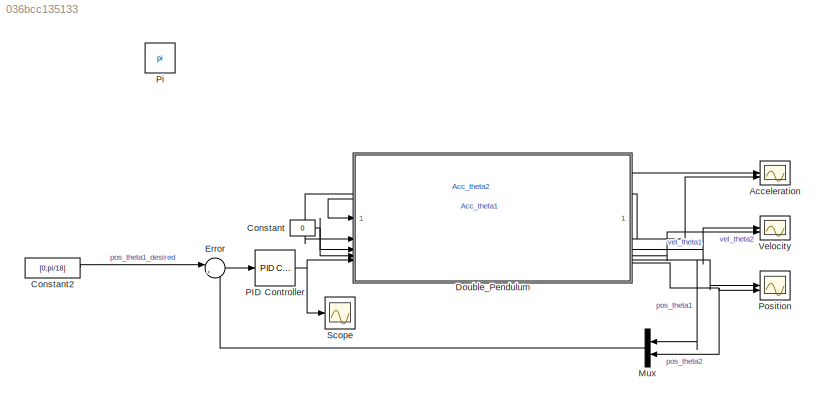
MODEL slx_036bcc135133
KIND model
CONFIG AbsTol = auto
CONFIG EnableMultiTasking = off
CONFIG FixedStep = auto
CONFIG MaxStep = auto
CONFIG MinStep = auto
CONFIG RelTol = 1e-3
CONFIG SampleTimeConstraint = Unconstrained
CONFIG SolverName = VariableStepAuto
CONFIG StartTime = 0.0
CONFIG StopTime = 5
BLOCK [Scope] Acceleration
  Floating = off
  NumInputPorts = 2
  ScopeSpecificationString = Simulink.scopes.TimeScopeBlockCfg('CurrentConfiguration', extmgr.ConfigurationSet(extmgr.Configuration('Core','General UI',true),extmgr.Configuration('Core','Source UI',true),extmgr.Configuration('Sources','WiredSimulink',true,'DataLoggingVariableName','ScopeData3'),extmgr.Configuration('Visuals','Time Domain',true,'SerializedDisplays',{struct('MinYLimReal','-14.72303','MaxYLimReal','12.15918','YL...<+1386ch>
BLOCK [Constant] Constant
  Value = 0
BLOCK [Constant] Constant2
  Value = [0;pi/18]
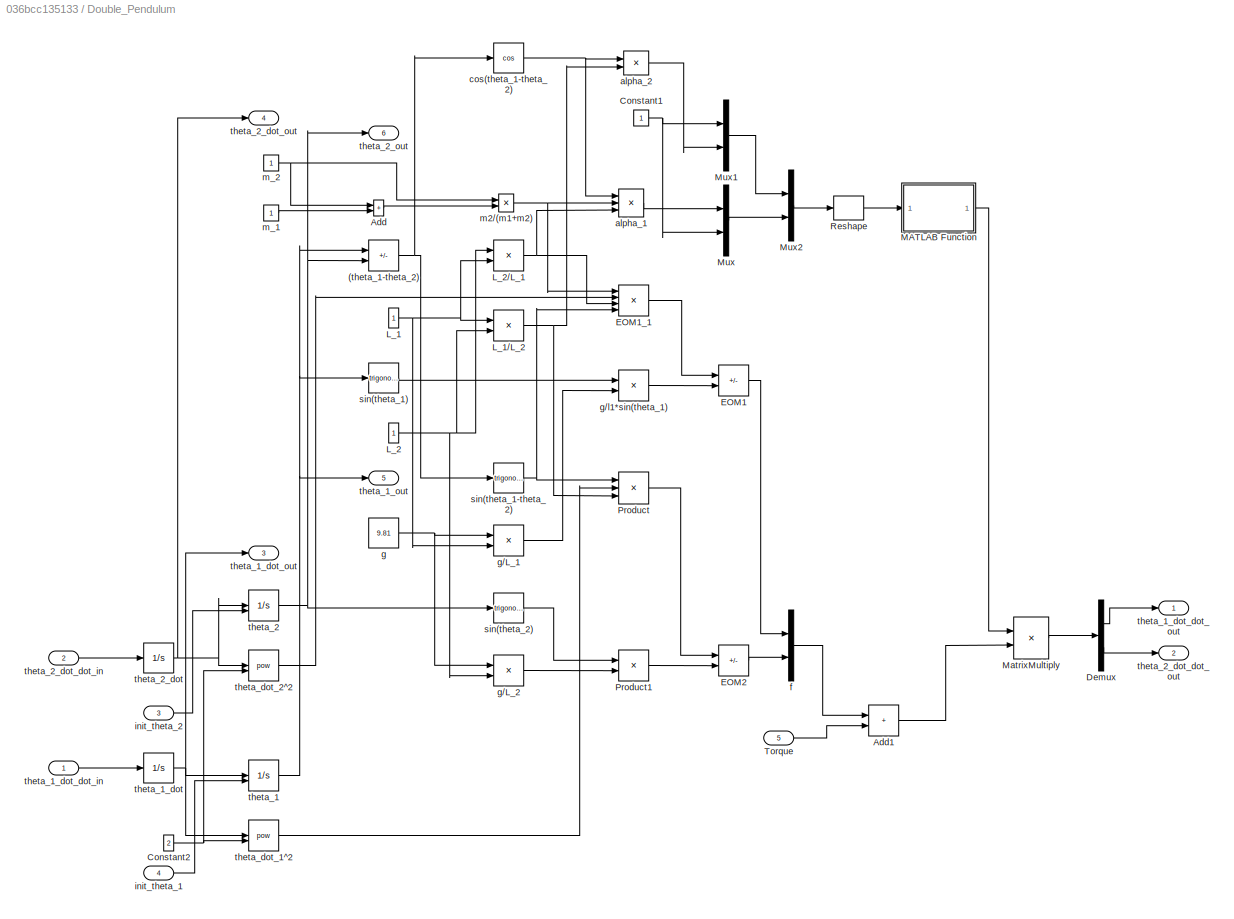
BLOCK [SubSystem] Double_Pendulum
BLOCK [Sum] Double_Pendulum/(theta_1-theta_2)
  IconShape = rectangular
  Inputs = +-
BLOCK [Sum] Double_Pendulum/Add
  IconShape = rectangular
BLOCK [Sum] Double_Pendulum/Add1
  IconShape = rectangular
BLOCK [Constant] Double_Pendulum/Constant1
BLOCK [Constant] Double_Pendulum/Constant2
  Value = 2
BLOCK [Demux] Double_Pendulum/Demux
  Outputs = 2
BLOCK [Sum] Double_Pendulum/EOM1
  IconShape = rectangular
  Inputs = --
BLOCK [Product] Double_Pendulum/EOM1_1
  Inputs = 4
BLOCK [Sum] Double_Pendulum/EOM2
  IconShape = rectangular
  Inputs = +-
BLOCK [Constant] Double_Pendulum/L_1
BLOCK [Product] Double_Pendulum/L_1//L_2
  Inputs = */
BLOCK [Constant] Double_Pendulum/L_2
BLOCK [Product] Double_Pendulum/L_2//L_1
  Inputs = */
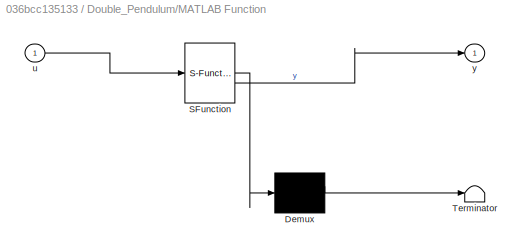
BLOCK [SubSystem] Double_Pendulum/MATLAB Function
  ErrorFcn = Stateflow.Translate.translate
  LibrarySourceBlock = simulink/User-Defined\nFunctions/MATLAB Function
  PermitHierarchicalResolution = ExplicitOnly
  SFBlockType = MATLAB Function
  TreatAsAtomicUnit = on
BLOCK [Demux] Double_Pendulum/MATLAB Function/ Demux 
  Outputs = 1
BLOCK [S-Function] Double_Pendulum/MATLAB Function/ SFunction 
  EnableBusSupport = on
  FunctionName = sf_sfun
  PortCounts = [1 2]
  SFcnIsStateOwnerBlock = off
  SFunctionDeploymentMode = off
  Tag = Stateflow S-Function 1
BLOCK [Terminator] Double_Pendulum/MATLAB Function/ Terminator 
BLOCK [Inport] Double_Pendulum/MATLAB Function/u
BLOCK [Outport] Double_Pendulum/MATLAB Function/y
BLOCK [Product] Double_Pendulum/MatrixMultiply
  Multiplication = Matrix(*)
BLOCK [Mux] Double_Pendulum/Mux
  DisplayOption = bar
  Inputs = 2
BLOCK [Mux] Double_Pendulum/Mux1
  DisplayOption = bar
  Inputs = 2
BLOCK [Mux] Double_Pendulum/Mux2
  DisplayOption = bar
  Inputs = 2
BLOCK [Product] Double_Pendulum/Product
  Inputs = 3
BLOCK [Product] Double_Pendulum/Product1
BLOCK [Reshape] Double_Pendulum/Reshape
  OutputDimensionality = Customize
  OutputDimensions = [2,2]
BLOCK [Inport] Double_Pendulum/Torque
  Port = 5
BLOCK [Product] Double_Pendulum/alpha_1
  Inputs = 3
BLOCK [Product] Double_Pendulum/alpha_2
BLOCK [Trigonometry] Double_Pendulum/cos(theta_1-theta_2)
  Operator = cos
BLOCK [Mux] Double_Pendulum/f
  DisplayOption = bar
  Inputs = 2
BLOCK [Constant] Double_Pendulum/g
  Value = 9.81
BLOCK [Product] Double_Pendulum/g//L_1
  Inputs = */
BLOCK [Product] Double_Pendulum/g//L_2
  Inputs = */
BLOCK [Product] Double_Pendulum/g//l1*sin(theta_1)
BLOCK [Inport] Double_Pendulum/init_theta_1
  Port = 4
BLOCK [Inport] Double_Pendulum/init_theta_2
  Port = 3
BLOCK [Product] Double_Pendulum/m2//(m1+m2)
  Inputs = */
BLOCK [Constant] Double_Pendulum/m_1
BLOCK [Constant] Double_Pendulum/m_2
BLOCK [Trigonometry] Double_Pendulum/sin(theta_1)
BLOCK [Trigonometry] Double_Pendulum/sin(theta_1-theta_2)
BLOCK [Trigonometry] Double_Pendulum/sin(theta_2)
BLOCK [Integrator] Double_Pendulum/theta_1
  InitialCondition = pi/4
  InitialConditionSource = external
BLOCK [Integrator] Double_Pendulum/theta_1_dot
BLOCK [Inport] Double_Pendulum/theta_1_dot_dot_in
BLOCK [Outport] Double_Pendulum/theta_1_dot_dot_out
BLOCK [Outport] Double_Pendulum/theta_1_dot_out
  Port = 3
BLOCK [Outport] Double_Pendulum/theta_1_out
  Port = 5
BLOCK [Integrator] Double_Pendulum/theta_2
  InitialCondition = pi/4
  InitialConditionSource = external
BLOCK [Integrator] Double_Pendulum/theta_2_dot
BLOCK [Inport] Double_Pendulum/theta_2_dot_dot_in
  Port = 2
BLOCK [Outport] Double_Pendulum/theta_2_dot_dot_out
  Port = 2
BLOCK [Outport] Double_Pendulum/theta_2_dot_out
  Port = 4
BLOCK [Outport] Double_Pendulum/theta_2_out
  Port = 6
BLOCK [Math] Double_Pendulum/theta_dot_1^2
  Operator = pow
BLOCK [Math] Double_Pendulum/theta_dot_2^2
  Operator = pow
BLOCK [Sum] Error
  Inputs = |+-
BLOCK [Mux] Mux
  DisplayOption = bar
  Inputs = 2
BLOCK [Reference] PID Controller  REF=slpidlib/PID Controller
  LibrarySourceBlock = simulink/Continuous/PID Controller
  SourceBlock = slpidlib/PID Controller
  SourceType = PID 1dof
BLOCK [Constant] Pi
  OutDataTypeStr = Inherit: Inherit via back propagation
  Value = pi
BLOCK [Scope] Position
  Floating = off
  NumInputPorts = 2
  ScopeSpecificationString = Simulink.scopes.TimeScopeBlockCfg('CurrentConfiguration', extmgr.ConfigurationSet(extmgr.Configuration('Core','General UI',true),extmgr.Configuration('Core','Source UI',true),extmgr.Configuration('Sources','WiredSimulink',true,'DataLoggingVariableName','ScopeData2'),extmgr.Configuration('Visuals','Time Domain',true,'SerializedDisplays',{struct('MinYLimReal','-0.11398','MaxYLimReal','0.26391','YLab...<+1456ch>
BLOCK [Scope] Scope
  Floating = off
  NumInputPorts = 1
  ScopeSpecificationString = Simulink.scopes.TimeScopeBlockCfg('CurrentConfiguration', extmgr.ConfigurationSet(extmgr.Configuration('Core','General UI',true),extmgr.Configuration('Core','Source UI',true),extmgr.Configuration('Sources','WiredSimulink',true,'DataLoggingVariableName','ScopeData1'),extmgr.Configuration('Visuals','Time Domain',true,'SerializedDisplays',{struct('MinYLimReal','-28.43898','MaxYLimReal','125.33293','Y...<+1404ch>
BLOCK [Scope] Velocity
  Floating = off
  NumInputPorts = 2
  ScopeSpecificationString = Simulink.scopes.TimeScopeBlockCfg('CurrentConfiguration', extmgr.ConfigurationSet(extmgr.Configuration('Core','General UI',true),extmgr.Configuration('Core','Source UI',true),extmgr.Configuration('Sources','WiredSimulink',true,'DataLoggingVariableName','ScopeData1'),extmgr.Configuration('Visuals','Time Domain',true,'SerializedDisplays',{struct('MinYLimReal','-2.57076','MaxYLimReal','3.35807','YLab...<+1380ch>
LINE Constant2:1 -> Error:1
NET Constant:1 -> Double_Pendulum:3, Double_Pendulum:4
NET Double_Pendulum/(theta_1-theta_2):1 -> Double_Pendulum/cos(theta_1-theta_2):1, Double_Pendulum/sin(theta_1-theta_2):1
LINE Double_Pendulum/Add1:1 -> Double_Pendulum/MatrixMultiply:2
LINE Double_Pendulum/Add:1 -> Double_Pendulum/m2//(m1+m2):2
NET Double_Pendulum/Constant1:1 -> Double_Pendulum/Mux1:1, Double_Pendulum/Mux:2
NET Double_Pendulum/Constant2:1 -> Double_Pendulum/theta_dot_1^2:2, Double_Pendulum/theta_dot_2^2:2
LINE Double_Pendulum/Demux:1 -> Double_Pendulum/theta_1_dot_dot_out:1
LINE Double_Pendulum/Demux:2 -> Double_Pendulum/theta_2_dot_dot_out:1
LINE Double_Pendulum/EOM1:1 -> Double_Pendulum/f:1
LINE Double_Pendulum/EOM1_1:1 -> Double_Pendulum/EOM1:1
LINE Double_Pendulum/EOM2:1 -> Double_Pendulum/f:2
NET Double_Pendulum/L_1//L_2:1 -> Double_Pendulum/Product:3, Double_Pendulum/alpha_2:2
NET Double_Pendulum/L_1:1 -> Double_Pendulum/L_1//L_2:1, Double_Pendulum/L_2//L_1:2, Double_Pendulum/g//L_1:2
NET Double_Pendulum/L_2//L_1:1 -> Double_Pendulum/EOM1_1:3, Double_Pendulum/alpha_1:3
NET Double_Pendulum/L_2:1 -> Double_Pendulum/L_1//L_2:2, Double_Pendulum/L_2//L_1:1, Double_Pendulum/g//L_2:2
LINE Double_Pendulum/MATLAB Function:1 -> Double_Pendulum/MatrixMultiply:1
LINE Double_Pendulum/MatrixMultiply:1 -> Double_Pendulum/Demux:1
LINE Double_Pendulum/Mux1:1 -> Double_Pendulum/Mux2:1
LINE Double_Pendulum/Mux2:1 -> Double_Pendulum/Reshape:1
LINE Double_Pendulum/Mux:1 -> Double_Pendulum/Mux2:2
LINE Double_Pendulum/Product1:1 -> Double_Pendulum/EOM2:2
LINE Double_Pendulum/Product:1 -> Double_Pendulum/EOM2:1
LINE Double_Pendulum/Reshape:1 -> Double_Pendulum/MATLAB Function:1
LINE Double_Pendulum/Torque:1 -> Double_Pendulum/Add1:2
LINE Double_Pendulum/alpha_1:1 -> Double_Pendulum/Mux:1
LINE Double_Pendulum/alpha_2:1 -> Double_Pendulum/Mux1:2
NET Double_Pendulum/cos(theta_1-theta_2):1 -> Double_Pendulum/alpha_1:1, Double_Pendulum/alpha_2:1
LINE Double_Pendulum/f:1 -> Double_Pendulum/Add1:1
LINE Double_Pendulum/g//L_1:1 -> Double_Pendulum/g//l1*sin(theta_1):2
LINE Double_Pendulum/g//L_2:1 -> Double_Pendulum/Product1:2
LINE Double_Pendulum/g//l1*sin(theta_1):1 -> Double_Pendulum/EOM1:2
NET Double_Pendulum/g:1 -> Double_Pendulum/g//L_1:1, Double_Pendulum/g//L_2:1
LINE Double_Pendulum/init_theta_1:1 -> Double_Pendulum/theta_1:2
LINE Double_Pendulum/init_theta_2:1 -> Double_Pendulum/theta_2:2
NET Double_Pendulum/m2//(m1+m2):1 -> Double_Pendulum/EOM1_1:1, Double_Pendulum/alpha_1:2
LINE Double_Pendulum/m_1:1 -> Double_Pendulum/Add:2
NET Double_Pendulum/m_2:1 -> Double_Pendulum/Add:1, Double_Pendulum/m2//(m1+m2):1
LINE Double_Pendulum/sin(theta_1):1 -> Double_Pendulum/g//l1*sin(theta_1):1
NET Double_Pendulum/sin(theta_1-theta_2):1 -> Double_Pendulum/EOM1_1:4, Double_Pendulum/Product:1
LINE Double_Pendulum/sin(theta_2):1 -> Double_Pendulum/Product1:1
NET Double_Pendulum/theta_1:1 -> Double_Pendulum/(theta_1-theta_2):1, Double_Pendulum/sin(theta_1):1, Double_Pendulum/theta_1_out:1
NET Double_Pendulum/theta_1_dot:1 -> Double_Pendulum/theta_1:1, Double_Pendulum/theta_1_dot_out:1, Double_Pendulum/theta_dot_1^2:1
LINE Double_Pendulum/theta_1_dot_dot_in:1 -> Double_Pendulum/theta_1_dot:1
NET Double_Pendulum/theta_2:1 -> Double_Pendulum/(theta_1-theta_2):2, Double_Pendulum/sin(theta_2):1, Double_Pendulum/theta_2_out:1
NET Double_Pendulum/theta_2_dot:1 -> Double_Pendulum/theta_2:1, Double_Pendulum/theta_2_dot_out:1, Double_Pendulum/theta_dot_2^2:1
LINE Double_Pendulum/theta_2_dot_dot_in:1 -> Double_Pendulum/theta_2_dot:1
LINE Double_Pendulum/theta_dot_1^2:1 -> Double_Pendulum/Product:2
LINE Double_Pendulum/theta_dot_2^2:1 -> Double_Pendulum/EOM1_1:2
NET Double_Pendulum:1 -> Acceleration:1, Double_Pendulum:1
NET Double_Pendulum:2 -> Acceleration:2, Double_Pendulum:2
LINE Double_Pendulum:3 -> Velocity:1
LINE Double_Pendulum:4 -> Velocity:2
NET Double_Pendulum:5 -> Mux:1, Position:1
NET Double_Pendulum:6 -> Mux:2, Position:2
LINE Error:1 -> PID Controller:1
LINE Mux:1 -> Error:2
NET PID Controller:1 -> Double_Pendulum:5, Scope:1
note: NET lines group one-source signal fan-out (src -> all destinations, sorted); 1:1 wires keep LINE
CHART Double_Pendulum/MATLAB Function states=1 transitions=1
  STATE_LABEL 'eML_blk_kernel()'
  STATE_LABEL 'SCRIPT:\nfunction y = inverse_2x2(u)\n    % u is a 2x2 matrix\n    y = inv(u);\nend'
CHART  states=0 transitions=0
